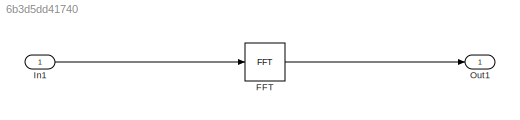
MODEL slx_6b3d5dd41740
KIND model
CONFIG AbsTol = auto
CONFIG EnableMultiTasking = on
CONFIG FixedStep = 0.0625
CONFIG MaxStep = auto
CONFIG MinStep = auto
CONFIG RelTol = 1e-3
CONFIG SampleTimeConstraint = Unconstrained
CONFIG SolverName = FixedStepDiscrete
CONFIG StartTime = 0.0
CONFIG StopTime = 10
BLOCK [Reference] FFT  REF=dspxfrm3/FFT
  SourceBlock = dspxfrm3/FFT
  SourceType = FFT
BLOCK [Inport] In1
  OutDataTypeStr = single
  PortDimensions = [64 1]
  SampleTime = [0.0625 0]
  SignalType = real
BLOCK [Outport] Out1
  OutDataTypeStr = single
  SamplingMode = Sample based
  SignalType = complex
LINE FFT:1 -> Out1:1
LINE In1:1 -> FFT:1
